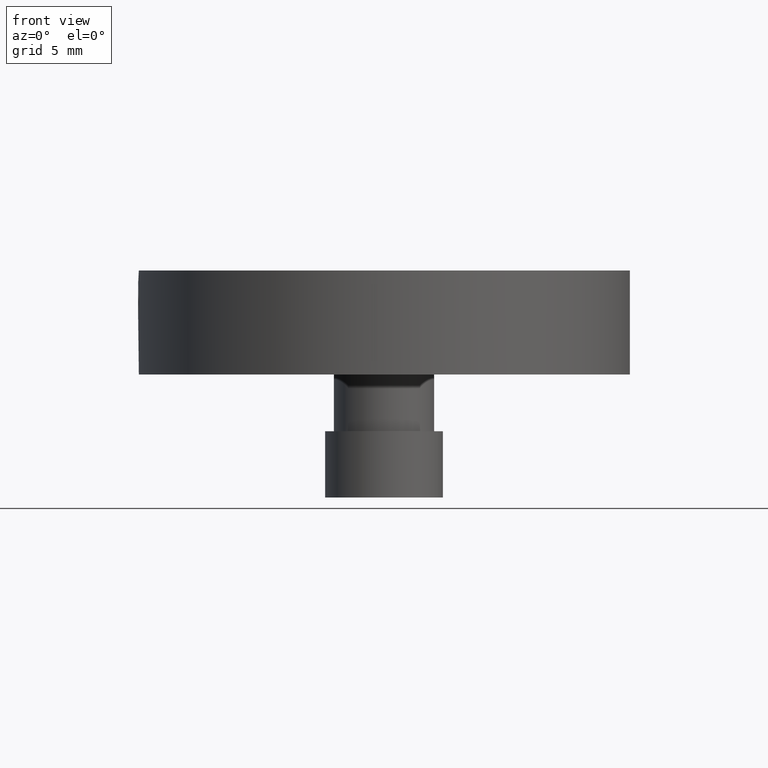
[diagram: clean part render]
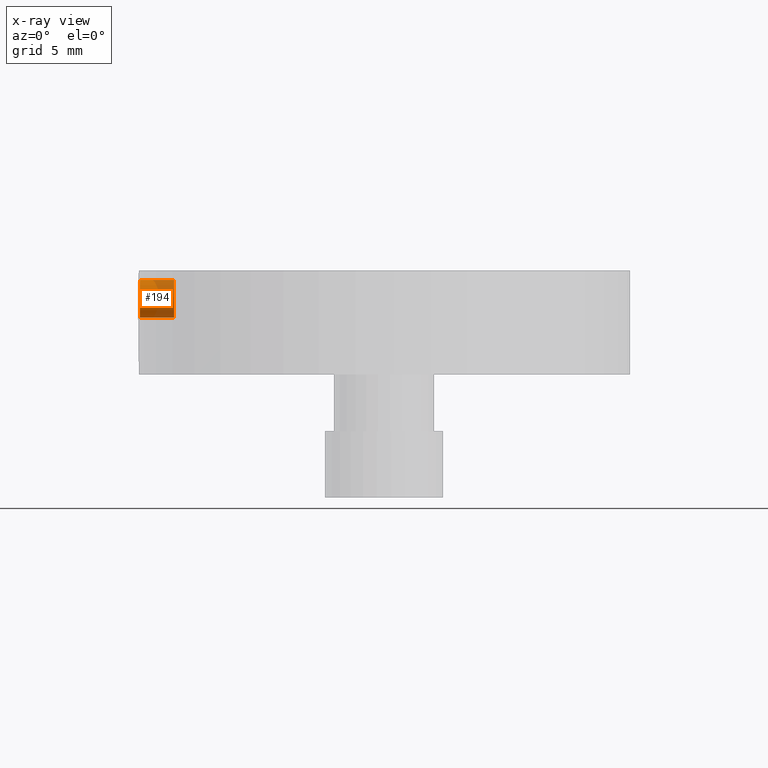
[diagram: x-ray — body ghosted, one internal face saturated and labeled with its STEP entity id]
A machine part, front view, then the same camera in x-ray: the body is ghosted and one INTERNAL B-rep face — a face not visible from any outside direction — is saturated and labeled: STEP entity #194.
In plain terms, the highlighted cylindrical surface (bore or boss wall) has radius 1 mm, axis along (1, 0, 0).
Its self-contained STEP definition (entity closure, byte-faithful):
#47 = DIRECTION ( 'NONE',  ( -1.000000000000000000, 0.0000000000000000000, 0.0000000000000000000 ) ) ;
#111 = DIRECTION ( 'NONE',  ( 1.000000000000000000, 0.0000000000000000000, 0.0000000000000000000 ) ) ;
#194 = ADVANCED_FACE ( 'NONE', ( #732, #869 ), #946, .T. ) ;
#199 = EDGE_LOOP ( 'NONE', ( #627 ) ) ;
#248 = DIRECTION ( 'NONE',  ( 0.0000000000000000000, 0.9242245927363035300, 0.3818493186865912200 ) ) ;
#252 = CARTESIAN_POINT ( 'NONE',  ( 23.86877972817966800, -1.515573104758453700, 30.50000000000000400 ) ) ;
#354 = CIRCLE ( 'NONE', #674, 0.9999999999999996700 ) ;
#387 = AXIS2_PLACEMENT_3D ( 'NONE', #252, #685, #644 ) ;
#416 = CARTESIAN_POINT ( 'NONE',  ( -14.72252461964640300, -2.439797697494757100, 30.11815068131341300 ) ) ;
#518 = CIRCLE ( 'NONE', #1073, 0.9999999999999996700 ) ;
#527 = EDGE_LOOP ( 'NONE', ( #1035 ) ) ;
#561 = VERTEX_POINT ( 'NONE', #416 ) ;
#597 = EDGE_CURVE ( 'NONE', #1071, #1071, #518, .T. ) ;
#605 = CARTESIAN_POINT ( 'NONE',  ( -14.72252461964640300, -1.515573104758453700, 30.50000000000000400 ) ) ;
#621 = CARTESIAN_POINT ( 'NONE',  ( -12.92252461964640800, -1.515573104758453700, 30.50000000000000400 ) ) ;
#627 = ORIENTED_EDGE ( 'NONE', *, *, #1074, .T. ) ;
#644 = DIRECTION ( 'NONE',  ( 0.0000000000000000000, -0.9242245927363035300, -0.3818493186865912200 ) ) ;
#674 = AXIS2_PLACEMENT_3D ( 'NONE', #605, #111, #684 ) ;
#684 = DIRECTION ( 'NONE',  ( 0.0000000000000000000, -0.9242245927363035300, -0.3818493186865912200 ) ) ;
#685 = DIRECTION ( 'NONE',  ( 1.000000000000000000, 0.0000000000000000000, 0.0000000000000000000 ) ) ;
#732 = FACE_OUTER_BOUND ( 'NONE', #199, .T. ) ;
#869 = FACE_OUTER_BOUND ( 'NONE', #527, .T. ) ;
#877 = CARTESIAN_POINT ( 'NONE',  ( -12.92252461964640800, -0.5913485120221505500, 30.88184931868659400 ) ) ;
#946 = CYLINDRICAL_SURFACE ( 'NONE', #387, 0.9999999999999996700 ) ;
#1035 = ORIENTED_EDGE ( 'NONE', *, *, #597, .T. ) ;
#1071 = VERTEX_POINT ( 'NONE', #877 ) ;
#1073 = AXIS2_PLACEMENT_3D ( 'NONE', #621, #47, #248 ) ;
#1074 = EDGE_CURVE ( 'NONE', #561, #561, #354, .T. ) ;